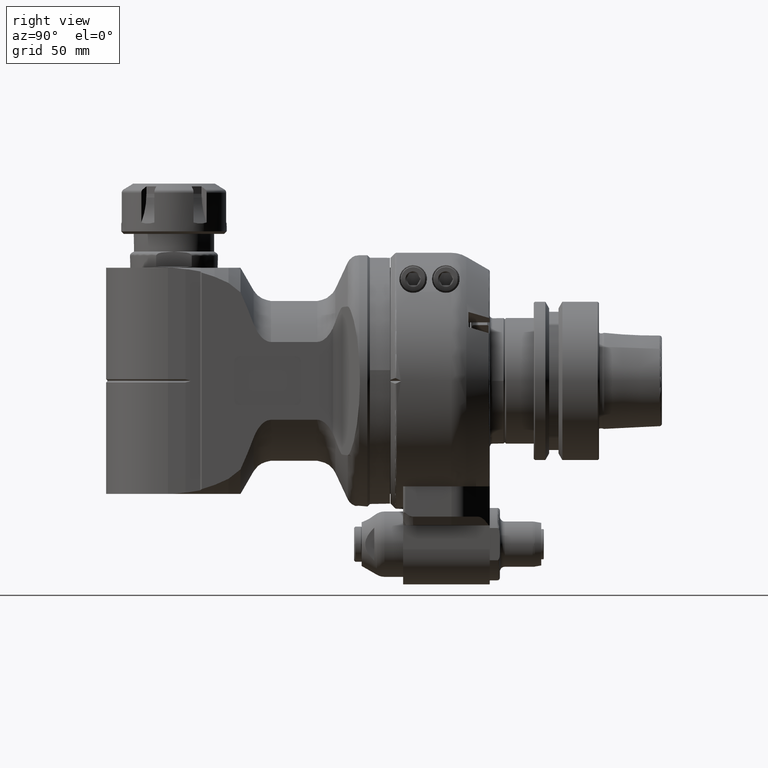
[diagram: clean part render]
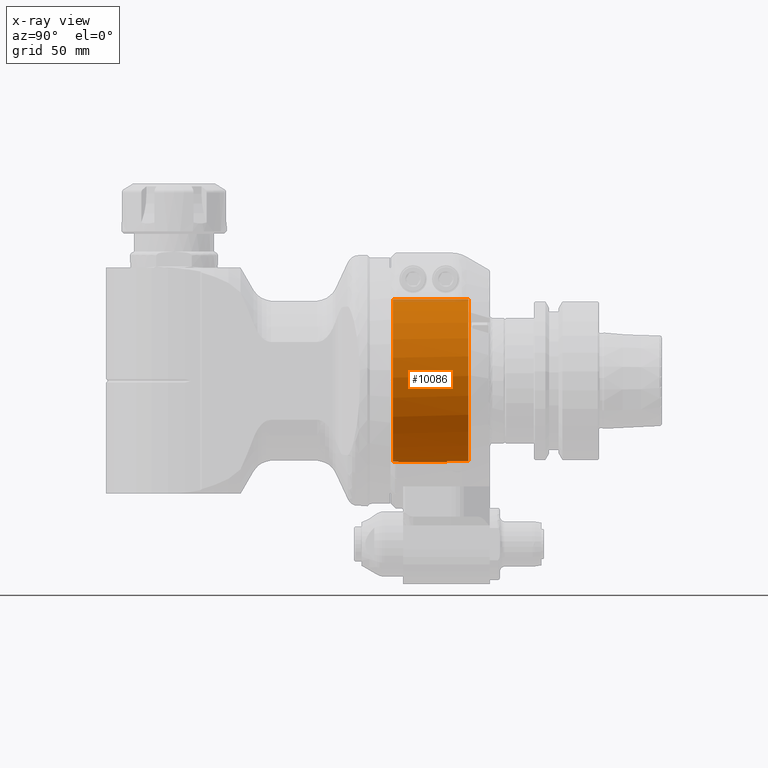
[diagram: x-ray — body ghosted, one internal face saturated and labeled with its STEP entity id]
A machine part, right view, then the same camera in x-ray: the body is ghosted and one INTERNAL B-rep face — a face not visible from any outside direction — is saturated and labeled: STEP entity #10086.
In plain terms, the highlighted cylindrical surface (partial cylindrical patch) has radius 32.5 mm, axis along (0, -1, 0).
Its self-contained STEP definition (entity closure, byte-faithful):
#682=CYLINDRICAL_SURFACE('',#11059,32.5);
#1005=CIRCLE('',#11010,32.5);
#1027=CIRCLE('',#11060,32.5);
#1028=CIRCLE('',#11061,32.5);
#1029=CIRCLE('',#11062,32.5);
#1615=FACE_OUTER_BOUND('',#2274,.T.);
#2274=EDGE_LOOP('',(#7903,#7904,#7905,#7906,#7907,#7908,#7909,#7910));
#2950=LINE('',#18266,#3604);
#2951=LINE('',#18269,#3605);
#2952=LINE('',#18273,#3606);
#2953=LINE('',#18277,#3607);
#3604=VECTOR('',#13176,8.5);
#3605=VECTOR('',#13179,8.5);
#3606=VECTOR('',#13182,30.);
#3607=VECTOR('',#13185,29.99999999998);
#4422=VERTEX_POINT('',#17377);
#4423=VERTEX_POINT('',#17379);
#4461=VERTEX_POINT('',#18264);
#4462=VERTEX_POINT('',#18268);
#4463=VERTEX_POINT('',#18270);
#4464=VERTEX_POINT('',#18272);
#4465=VERTEX_POINT('',#18274);
#4466=VERTEX_POINT('',#18276);
#5626=EDGE_CURVE('',#4423,#4422,#1005,.T.);
#5696=EDGE_CURVE('',#4422,#4461,#2950,.T.);
#5697=EDGE_CURVE('',#4423,#4462,#2951,.T.);
#5698=EDGE_CURVE('',#4463,#4461,#1027,.T.);
#5699=EDGE_CURVE('',#4463,#4464,#2952,.T.);
#5700=EDGE_CURVE('',#4465,#4464,#1028,.T.);
#5701=EDGE_CURVE('',#4465,#4466,#2953,.T.);
#5702=EDGE_CURVE('',#4462,#4466,#1029,.T.);
#7903=ORIENTED_EDGE('',*,*,#5697,.F.);
#7904=ORIENTED_EDGE('',*,*,#5626,.T.);
#7905=ORIENTED_EDGE('',*,*,#5696,.T.);
#7906=ORIENTED_EDGE('',*,*,#5698,.F.);
#7907=ORIENTED_EDGE('',*,*,#5699,.T.);
#7908=ORIENTED_EDGE('',*,*,#5700,.F.);
#7909=ORIENTED_EDGE('',*,*,#5701,.T.);
#7910=ORIENTED_EDGE('',*,*,#5702,.F.);
#10086=ADVANCED_FACE('',(#1615),#682,.F.);
#11010=AXIS2_PLACEMENT_3D('',#17380,#13045,#13046);
#11059=AXIS2_PLACEMENT_3D('',#18267,#13177,#13178);
#11060=AXIS2_PLACEMENT_3D('',#18271,#13180,#13181);
#11061=AXIS2_PLACEMENT_3D('',#18275,#13183,#13184);
#11062=AXIS2_PLACEMENT_3D('',#18278,#13186,#13187);
#13045=DIRECTION('center_axis',(0.,1.,0.));
#13046=DIRECTION('ref_axis',(0.164179104477598,0.,-0.986430545782588));
#13176=DIRECTION('',(0.,1.,0.));
#13177=DIRECTION('center_axis',(0.,-1.,0.));
#13178=DIRECTION('ref_axis',(1.38678298153134E-13,0.,-1.));
#13179=DIRECTION('',(0.,1.,0.));
#13180=DIRECTION('center_axis',(0.,-1.,0.));
#13181=DIRECTION('ref_axis',(-0.0461538461538519,0.,0.998934343430642));
#13182=DIRECTION('',(0.,-1.,0.));
#13183=DIRECTION('center_axis',(0.,1.,0.));
#13184=DIRECTION('ref_axis',(0.,0.,-1.));
#13185=DIRECTION('',(3.148370453234E-13,1.,-1.421085471521E-14));
#13186=DIRECTION('center_axis',(0.,-1.,0.));
#13187=DIRECTION('ref_axis',(0.164179104477598,0.,-0.986430545782588));
#17377=CARTESIAN_POINT('',(-5.335820895522,22.5,-32.05899273793));
#17379=CARTESIAN_POINT('',(5.335820895522,22.5,-32.05899273793));
#17380=CARTESIAN_POINT('Origin',(0.,22.5,0.));
#18264=CARTESIAN_POINT('',(-5.335820895522,31.,-32.05899273793));
#18266=CARTESIAN_POINT('',(-5.335820895522,22.5,-32.05899273793));
#18267=CARTESIAN_POINT('Origin',(0.,16.5,0.));
#18268=CARTESIAN_POINT('',(5.335820895522,31.,-32.05899273793));
#18269=CARTESIAN_POINT('',(5.335820895522,22.5,-32.05899273793));
#18270=CARTESIAN_POINT('',(-1.5,31.,32.4653661615));
#18271=CARTESIAN_POINT('Origin',(0.,31.,0.));
#18272=CARTESIAN_POINT('',(-1.5,1.,32.4653661615));
#18273=CARTESIAN_POINT('',(-1.5,31.,32.4653661615));
#18274=CARTESIAN_POINT('',(1.499999999991,1.000000000023,32.4653661615));
#18275=CARTESIAN_POINT('Origin',(0.,0.9999999999999,0.));
#18276=CARTESIAN_POINT('',(1.5,31.,32.4653661615));
#18277=CARTESIAN_POINT('',(1.499999999991,1.000000000023,32.4653661615));
#18278=CARTESIAN_POINT('Origin',(0.,31.,0.));